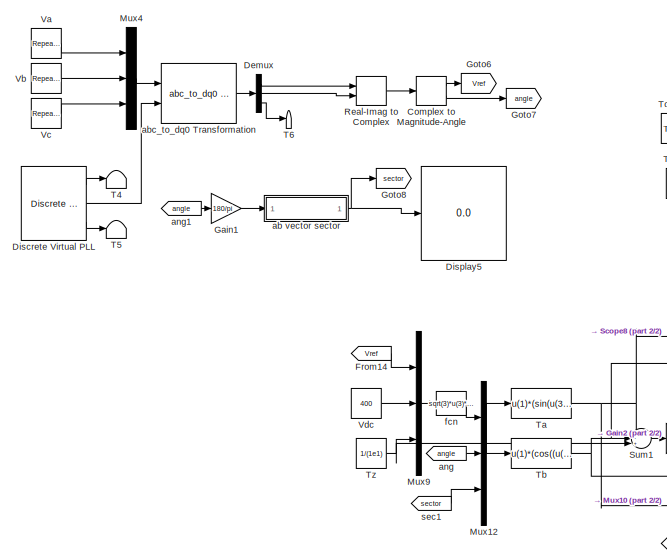
[diagram: root canvas - part 1/2, top left region]
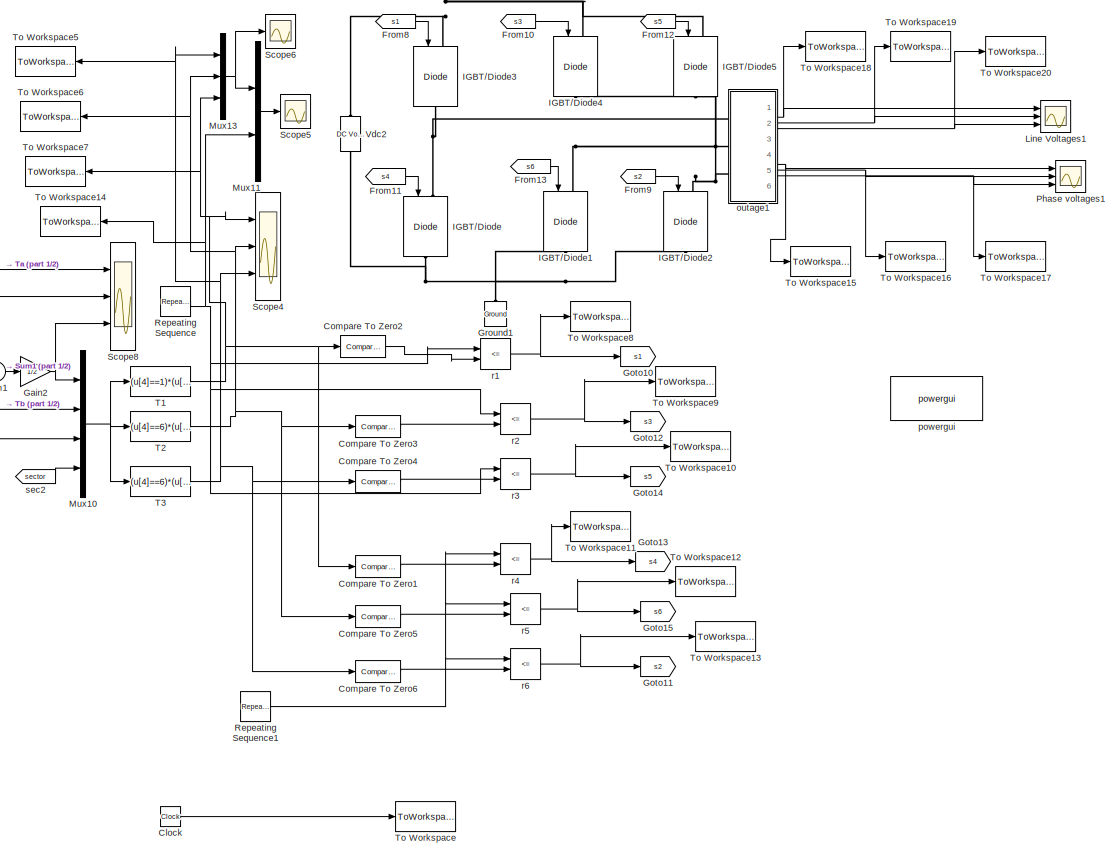
[diagram: root canvas - part 2/2, right side, full height]
MODEL slx_977e839b916f
KIND model
BLOCK [Clock] Clock
BLOCK [Reference] Compare To Zero1  REF=simulink/Logic and Bit
Operations/Compare
To Zero
  OutDataTypeStr = boolean
  Ports = [1, 1]
  SourceBlock = simulink/Logic and Bit\nOperations/Compare\nTo Zero
  SourceType = Compare To Zero
  ZeroCross = off
  relop = <
BLOCK [Reference] Compare To Zero2  REF=simulink/Logic and Bit
Operations/Compare
To Zero
  OutDataTypeStr = boolean
  Ports = [1, 1]
  SourceBlock = simulink/Logic and Bit\nOperations/Compare\nTo Zero
  SourceType = Compare To Zero
  ZeroCross = off
  relop = >
BLOCK [Reference] Compare To Zero3  REF=simulink/Logic and Bit
Operations/Compare
To Zero
  OutDataTypeStr = boolean
  Ports = [1, 1]
  SourceBlock = simulink/Logic and Bit\nOperations/Compare\nTo Zero
  SourceType = Compare To Zero
  ZeroCross = off
  relop = >
BLOCK [Reference] Compare To Zero4  REF=simulink/Logic and Bit
Operations/Compare
To Zero
  OutDataTypeStr = boolean
  Ports = [1, 1]
  SourceBlock = simulink/Logic and Bit\nOperations/Compare\nTo Zero
  SourceType = Compare To Zero
  ZeroCross = off
  relop = >
BLOCK [Reference] Compare To Zero5  REF=simulink/Logic and Bit
Operations/Compare
To Zero
  OutDataTypeStr = boolean
  Ports = [1, 1]
  SourceBlock = simulink/Logic and Bit\nOperations/Compare\nTo Zero
  SourceType = Compare To Zero
  ZeroCross = off
  relop = <
BLOCK [Reference] Compare To Zero6  REF=simulink/Logic and Bit
Operations/Compare
To Zero
  OutDataTypeStr = boolean
  Ports = [1, 1]
  SourceBlock = simulink/Logic and Bit\nOperations/Compare\nTo Zero
  SourceType = Compare To Zero
  ZeroCross = off
  relop = <
BLOCK [ComplexToMagnitudeAngle] Complex to Magnitude-Angle
  Ports = [1, 2]
BLOCK [Demux] Demux
  DisplayOption = bar
  Outputs = 3
  Ports = [1, 3]
BLOCK [Reference] Discrete Virtual PLL  REF=powerlib_extras/Discrete 
Control Blocks/Discrete
Virtual PLL
  Freq = 50
  Phase = 0
  Ports = [0, 3]
  SourceBlock = powerlib_extras/Discrete \nControl Blocks/Discrete\nVirtual PLL
  SourceType = Discrete Virtual PLL
  Ts = 50e-6
BLOCK [Display] Display5
  Decimation = 6
  Lockdown = off
  Ports = [1]
BLOCK [From] From10
  CloseFcn = tagdialog Close
  GotoTag = s3
BLOCK [From] From11
  CloseFcn = tagdialog Close
  GotoTag = s4
BLOCK [From] From12
  CloseFcn = tagdialog Close
  GotoTag = s5
BLOCK [From] From13
  CloseFcn = tagdialog Close
  GotoTag = s6
BLOCK [From] From14
  CloseFcn = tagdialog Close
  GotoTag = Vref
BLOCK [From] From8
  CloseFcn = tagdialog Close
  GotoTag = s1
BLOCK [From] From9
  CloseFcn = tagdialog Close
  GotoTag = s2
BLOCK [Gain] Gain1
  Gain = 180/pi
  OutDataTypeStr = Inherit: Inherit via internal rule
  ParamDataTypeStr = Inherit: Inherit via internal rule
  SaturateOnIntegerOverflow = off
BLOCK [Gain] Gain2
  Gain = 1/2
  OutDataTypeStr = Inherit: Inherit via internal rule
  ParamDataTypeStr = Inherit: Inherit via internal rule
  SaturateOnIntegerOverflow = off
BLOCK [Goto] Goto10
  GotoTag = s1
BLOCK [Goto] Goto11
  GotoTag = s2
BLOCK [Goto] Goto12
  GotoTag = s3
BLOCK [Goto] Goto13
  GotoTag = s4
BLOCK [Goto] Goto14
  GotoTag = s5
BLOCK [Goto] Goto15
  GotoTag = s6
BLOCK [Goto] Goto6
  GotoTag = Vref
BLOCK [Goto] Goto7
  GotoTag = angle
BLOCK [Goto] Goto8
  GotoTag = sector
BLOCK [Reference] Ground1  REF=powerlib/Elements/Ground
  LConnTagsString = a
  Ports = [0, 0, 0, 0, 0, 1]
  SourceBlock = powerlib/Elements/Ground
  SourceType = Ground
BLOCK [Reference] IGBT//Diode  REF=powerlib/Power
Electronics/IGBT//Diode
  Cs = inf
  Measurements = off
  Ports = [1, 0, 0, 0, 0, 1, 1]
  Ron = 1e-3
  Rs = 1e5
  SourceBlock = powerlib/Power\nElectronics/IGBT//Diode
  SourceType = IGBT/Diode
BLOCK [Reference] IGBT//Diode1  REF=powerlib/Power
Electronics/IGBT//Diode
  Cs = inf
  Measurements = off
  Ports = [1, 0, 0, 0, 0, 1, 1]
  Ron = 1e-3
  Rs = 1e5
  SourceBlock = powerlib/Power\nElectronics/IGBT//Diode
  SourceType = IGBT/Diode
BLOCK [Reference] IGBT//Diode2  REF=powerlib/Power
Electronics/IGBT//Diode
  Cs = inf
  Measurements = off
  Ports = [1, 0, 0, 0, 0, 1, 1]
  Ron = 1e-3
  Rs = 1e5
  SourceBlock = powerlib/Power\nElectronics/IGBT//Diode
  SourceType = IGBT/Diode
BLOCK [Reference] IGBT//Diode3  REF=powerlib/Power
Electronics/IGBT//Diode
  Cs = inf
  Measurements = off
  Ports = [1, 0, 0, 0, 0, 1, 1]
  Ron = 1e-3
  Rs = 1e5
  SourceBlock = powerlib/Power\nElectronics/IGBT//Diode
  SourceType = IGBT/Diode
BLOCK [Reference] IGBT//Diode4  REF=powerlib/Power
Electronics/IGBT//Diode
  Cs = inf
  Measurements = off
  Ports = [1, 0, 0, 0, 0, 1, 1]
  Ron = 1e-3
  Rs = 1e5
  SourceBlock = powerlib/Power\nElectronics/IGBT//Diode
  SourceType = IGBT/Diode
BLOCK [Reference] IGBT//Diode5  REF=powerlib/Power
Electronics/IGBT//Diode
  Cs = inf
  Measurements = off
  Ports = [1, 0, 0, 0, 0, 1, 1]
  Ron = 1e-3
  Rs = 1e5
  SourceBlock = powerlib/Power\nElectronics/IGBT//Diode
  SourceType = IGBT/Diode
BLOCK [Scope] Line Voltages1
  DataFormat = StructureWithTime
  Floating = off
  MaxDataPoints = 5000000
  NumInputPorts = 3
  Ports = [3]
  SampleInput = on
  SampleTime = 2e-6
  SaveName = Line_voltages1
  SaveToWorkspace = on
  ShowLegends = off
  YMax = 200~200~200
  YMin = -200~-200~-200
  ZoomMode = xonly
BLOCK [Mux] Mux10
  DisplayOption = bar
  Ports = [4, 1]
BLOCK [Mux] Mux11
  DisplayOption = bar
  Inputs = 2
  Ports = [2, 1]
BLOCK [Mux] Mux12
  DisplayOption = bar
  Inputs = 3
  Ports = [3, 1]
BLOCK [Mux] Mux13
  DisplayOption = bar
  Inputs = 3
  Ports = [3, 1]
BLOCK [Mux] Mux4
  DisplayOption = bar
  Inputs = 3
  Ports = [3, 1]
BLOCK [Mux] Mux9
  DisplayOption = bar
  Inputs = 3
  Ports = [3, 1]
BLOCK [Scope] Phase voltages1
  DataFormat = StructureWithTime
  Floating = off
  MaxDataPoints = 5000000
  NumInputPorts = 3
  Ports = [3]
  SampleInput = on
  SampleTime = 2e-6
  SaveName = Neutral_voltages1
  SaveToWorkspace = on
  ShowLegends = off
  YMax = 150~150~150
  YMin = -150~-150~-150
  ZoomMode = xonly
BLOCK [RealImagToComplex] Real-Imag to Complex
  Ports = [2, 1]
BLOCK [Reference] Repeating Sequence  REF=simulink/Sources/Repeating
Sequence
  Ports = [0, 1]
  SourceBlock = simulink/Sources/Repeating\nSequence
  SourceType = Repeating table
  rep_seq_t = [0 2e-5]
  rep_seq_y = [0.00001 1.5]
BLOCK [Reference] Repeating Sequence1  REF=simulink/Sources/Repeating
Sequence
  Ports = [0, 1]
  SourceBlock = simulink/Sources/Repeating\nSequence
  SourceType = Repeating table
  rep_seq_t = [0 2e-5]
  rep_seq_y = [0.00001 1.5]
BLOCK [Scope] Scope4
  DataFormat = StructureWithTime
  Floating = off
  NumInputPorts = 3
  Ports = [3]
  SampleTime = 0
  SaveName = ScopeData4
  ShowLegends = off
  YMax = 0.001~0.001~0.001
  YMin = -4.06576e-020~-4.06576e-020~-4.06576e-020
BLOCK [Scope] Scope5
  DataFormat = StructureWithTime
  Floating = off
  LegendLocations = 0.85175     0.85302     0.12461    0.094702
  NumInputPorts = 1
  Ports = [1]
  SampleTime = 0
  SaveName = ScopeData5
  ShowLegends = on
  YMax = 0.001
  YMin = 0
BLOCK [Scope] Scope6
  DataFormat = StructureWithTime
  Floating = off
  NumInputPorts = 1
  Ports = [1]
  SampleTime = 0
  SaveName = ScopeData6
  ShowLegends = off
  YMax = 0.001
  YMin = -4.06576e-020
  ZoomMode = xonly
BLOCK [Scope] Scope8
  DataFormat = StructureWithTime
  Floating = off
  NumInputPorts = 3
  Ports = [3]
  SampleTime = 0
  SaveName = ScopeData7
  ShowLegends = off
  YMax = 0.0009~0.0009~7e-005
  YMin = -5e-005~6.77626e-020~0
BLOCK [Sum] Sum1
  IconShape = round
  InputSameDT = off
  Inputs = --+
  OutDataTypeStr = Inherit: Inherit via internal rule
  Ports = [3, 1]
  SaturateOnIntegerOverflow = off
BLOCK [Fcn] T1
  Expr = (u[4]==1)*(u[1]+u[2]+u[3])+(u[4]==6)*(u[1]+u[2]+u[3])+(u[4]==2)*(u[1]+u[3])+(u[4]==3)*(u[1])+(u[4]==4)*(u[1])+(u[4]==5)*(u[1]+u[2])
BLOCK [Fcn] T2
  Expr = (u[4]==6)*(u[1])+(u[4]==1)*(u[1]+u[2])+(u[4]==2)*(u[1]+u[2]+u[3])+(u[4]==3)*(u[1]+u[2]+u[3])+(u[4]==4)*(u[1]+u[3])+(u[4]==5)*(u[1])
BLOCK [Fcn] T3
  Expr = (u[4]==6)*(u[1]+u[3])+(u[4]==1)*(u[1])+(u[4]==2)*(u[1])+(u[4]==3)*(u[1]+u[2])+(u[4]==4)*(u[1]+u[2]+u[3])+(u[4]==5)*(u[1]+u[2]+u[3])
BLOCK [Terminator] T4
BLOCK [Terminator] T5
BLOCK [Terminator] T6
BLOCK [Fcn] Ta
  Expr = u(1)*(sin(u(3)*pi/3)*cos(u(2))-cos(u(3)*pi/3)*sin(u(2)))
BLOCK [Fcn] Tb
  Expr = u(1)*(cos((u(3)-1)*(pi/3))*sin(u(2))-sin((u(3)-1)*(pi/3))*cos(u(2)))
BLOCK [ToWorkspace] To Workspace
  FixptAsFi = on
  MaxDataPoints = inf
  Ports = [1]
  SampleTime = -1
  SaveFormat = Structure With Time
  VariableName = Time
BLOCK [ToWorkspace] To Workspace10
  FixptAsFi = on
  MaxDataPoints = inf
  Ports = [1]
  SampleTime = -1
  SaveFormat = Structure With Time
  VariableName = s5
BLOCK [ToWorkspace] To Workspace11
  FixptAsFi = on
  MaxDataPoints = inf
  Ports = [1]
  SampleTime = -1
  SaveFormat = Structure With Time
  VariableName = s4
BLOCK [ToWorkspace] To Workspace12
  FixptAsFi = on
  MaxDataPoints = inf
  Ports = [1]
  SampleTime = -1
  SaveFormat = Structure With Time
  VariableName = s6
BLOCK [ToWorkspace] To Workspace13
  FixptAsFi = on
  MaxDataPoints = inf
  Ports = [1]
  SampleTime = -1
  SaveFormat = Structure With Time
  VariableName = s2
BLOCK [ToWorkspace] To Workspace14
  FixptAsFi = on
  MaxDataPoints = inf
  Ports = [1]
  SampleTime = -1
  SaveFormat = Structure With Time
  VariableName = saw
BLOCK [ToWorkspace] To Workspace15
  FixptAsFi = on
  MaxDataPoints = inf
  Ports = [1]
  SampleTime = -1
  SaveFormat = Structure With Time
  VariableName = vna
BLOCK [ToWorkspace] To Workspace16
  FixptAsFi = on
  MaxDataPoints = inf
  Ports = [1]
  SampleTime = -1
  SaveFormat = Structure With Time
  VariableName = vnb
BLOCK [ToWorkspace] To Workspace17
  FixptAsFi = on
  MaxDataPoints = inf
  Ports = [1]
  SampleTime = -1
  SaveFormat = Structure With Time
  VariableName = vnc
BLOCK [ToWorkspace] To Workspace18
  FixptAsFi = on
  MaxDataPoints = inf
  Ports = [1]
  SampleTime = -1
  SaveFormat = Structure With Time
  VariableName = vac
BLOCK [ToWorkspace] To Workspace19
  FixptAsFi = on
  MaxDataPoints = inf
  Ports = [1]
  SampleTime = -1
  SaveFormat = Structure With Time
  VariableName = vab
BLOCK [ToWorkspace] To Workspace20
  FixptAsFi = on
  MaxDataPoints = inf
  Ports = [1]
  SampleTime = -1
  SaveFormat = Structure With Time
  VariableName = vbc
BLOCK [ToWorkspace] To Workspace5
  FixptAsFi = on
  MaxDataPoints = inf
  Ports = [1]
  SampleTime = -1
  SaveFormat = Structure With Time
  VariableName = va
BLOCK [ToWorkspace] To Workspace6
  FixptAsFi = on
  MaxDataPoints = inf
  Ports = [1]
  SampleTime = -1
  SaveFormat = Structure With Time
  VariableName = vb
BLOCK [ToWorkspace] To Workspace7
  FixptAsFi = on
  MaxDataPoints = inf
  Ports = [1]
  SampleTime = -1
  SaveFormat = Structure With Time
  VariableName = vc
BLOCK [ToWorkspace] To Workspace8
  FixptAsFi = on
  MaxDataPoints = inf
  Ports = [1]
  SampleTime = -1
  SaveFormat = Structure With Time
  VariableName = s1
BLOCK [ToWorkspace] To Workspace9
  FixptAsFi = on
  MaxDataPoints = inf
  Ports = [1]
  SampleTime = -1
  SaveFormat = Structure With Time
  VariableName = s3
BLOCK [Constant] Tz
  Value = 1/(1e1)
BLOCK [Reference] Va   REF=simulink/Sources/Repeating
Sequence
Interpolated
  LockScale = off
  LookUpMeth = Interpolation-Use End Values
  OutDataType = fixdt(0,8)
  OutDataTypeStr = double
  OutMax = []
  OutMin = []
  OutScaling = 2^-10
  OutValues = [250 250 -250 -250 250 250 -250 -250].'
  OutputDataTypeScalingMode = double
  Ports = [0, 1]
  SourceBlock = simulink/Sources/Repeating\nSequence\nInterpolated
  SourceType = Repeating Sequence Interpolated
  TimeValues = [0 0.2 0.3 0.5 0.6 0.8 0.9 1.1].'
  tsamp = 0.01
BLOCK [Reference] Vb  REF=simulink/Sources/Repeating
Sequence
Interpolated
  LockScale = off
  LookUpMeth = Interpolation-Use End Values
  OutDataType = fixdt(0,8)
  OutDataTypeStr = double
  OutMax = []
  OutMin = []
  OutScaling = 2^-10
  OutValues = [-250 -250 250 250 -250 -250 250 250].'
  OutputDataTypeScalingMode = double
  Ports = [0, 1]
  SourceBlock = simulink/Sources/Repeating\nSequence\nInterpolated
  SourceType = Repeating Sequence Interpolated
  TimeValues = [0 0.1 0.2 0.4 0.5 0.7 0.8 1 ].'
  tsamp = 0.01
BLOCK [Reference] Vc  REF=simulink/Sources/Repeating
Sequence
Interpolated
  LockScale = off
  LookUpMeth = Interpolation-Use End Values
  OutDataType = fixdt(0,8)
  OutDataTypeStr = double
  OutMax = []
  OutMin = []
  OutScaling = 2^-10
  OutValues = [250 -250 -250 250 250 -250 -250 250].'
  OutputDataTypeScalingMode = double
  Ports = [0, 1]
  SourceBlock = simulink/Sources/Repeating\nSequence\nInterpolated
  SourceType = Repeating Sequence Interpolated
  TimeValues = [0 0.1 0.3 0.4 0.6 0.7 0.9 1].'
  tsamp = 0.01
BLOCK [Constant] Vdc
  Value = 400
BLOCK [Reference] Vdc2  REF=powerlib/Electrical
Sources/DC Voltage Source
  Amplitude = 400
  Measurements = None
  Ports = [0, 0, 0, 0, 0, 1, 1]
  SourceBlock = powerlib/Electrical\nSources/DC Voltage Source
  SourceType = DC Voltage Source
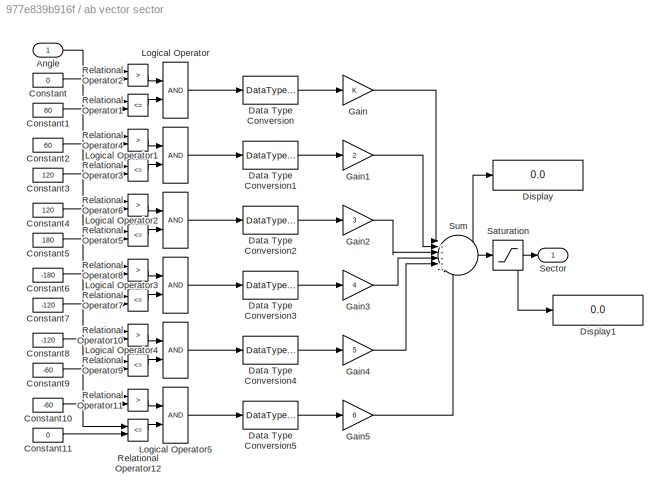
BLOCK [SubSystem] ab vector sector
  AncestorBlock = AC2DriveInternalModels/SVM generator/ab vector sector
  FunctionWithSeparateData = off
  MaskHideContents = off
  MinAlgLoopOccurrences = off
  Opaque = off
  Ports = [1, 1]
  PropExecContextOutsideSubsystem = off
  RTWSystemCode = Auto
  RequestExecContextInheritance = off
BLOCK [Inport] ab vector sector/Angle
  IconDisplay = Port number
BLOCK [Constant] ab vector sector/Constant
  Value = 0
BLOCK [Constant] ab vector sector/Constant1
  Value = 60
BLOCK [Constant] ab vector sector/Constant10
  Value = -60
BLOCK [Constant] ab vector sector/Constant11
  Value = 0
BLOCK [Constant] ab vector sector/Constant2
  Value = 60
BLOCK [Constant] ab vector sector/Constant3
  Value = 120
BLOCK [Constant] ab vector sector/Constant4
  Value = 120
BLOCK [Constant] ab vector sector/Constant5
  Value = 180
BLOCK [Constant] ab vector sector/Constant6
  Value = -180
BLOCK [Constant] ab vector sector/Constant7
  Value = -120
BLOCK [Constant] ab vector sector/Constant8
  Value = -120
BLOCK [Constant] ab vector sector/Constant9
  Value = -60
BLOCK [DataTypeConversion] ab vector sector/Data Type Conversion
BLOCK [DataTypeConversion] ab vector sector/Data Type Conversion1
BLOCK [DataTypeConversion] ab vector sector/Data Type Conversion2
BLOCK [DataTypeConversion] ab vector sector/Data Type Conversion3
BLOCK [DataTypeConversion] ab vector sector/Data Type Conversion4
BLOCK [DataTypeConversion] ab vector sector/Data Type Conversion5
BLOCK [Display] ab vector sector/Display
  Decimation = 1
  Lockdown = off
  Ports = [1]
BLOCK [Display] ab vector sector/Display1
  Decimation = 1
  Lockdown = off
  Ports = [1]
BLOCK [Gain] ab vector sector/Gain
BLOCK [Gain] ab vector sector/Gain1
  Gain = 2
BLOCK [Gain] ab vector sector/Gain2
  Gain = 3
BLOCK [Gain] ab vector sector/Gain3
  Gain = 4
BLOCK [Gain] ab vector sector/Gain4
  Gain = 5
BLOCK [Gain] ab vector sector/Gain5
  Gain = 6
BLOCK [Logic] ab vector sector/Logical Operator
  Ports = [2, 1]
BLOCK [Logic] ab vector sector/Logical Operator1
  Ports = [2, 1]
BLOCK [Logic] ab vector sector/Logical Operator2
  Ports = [2, 1]
BLOCK [Logic] ab vector sector/Logical Operator3
  Ports = [2, 1]
BLOCK [Logic] ab vector sector/Logical Operator4
  Ports = [2, 1]
BLOCK [Logic] ab vector sector/Logical Operator5
  Ports = [2, 1]
BLOCK [RelationalOperator] ab vector sector/Relational Operator1
  Operator = <=
  Ports = [2, 1]
BLOCK [RelationalOperator] ab vector sector/Relational Operator10
  Operator = >
  Ports = [2, 1]
BLOCK [RelationalOperator] ab vector sector/Relational Operator11
  Operator = >
  Ports = [2, 1]
BLOCK [RelationalOperator] ab vector sector/Relational Operator12
  Operator = <=
  Ports = [2, 1]
BLOCK [RelationalOperator] ab vector sector/Relational Operator2
  Operator = >
  Ports = [2, 1]
BLOCK [RelationalOperator] ab vector sector/Relational Operator3
  Operator = <=
  Ports = [2, 1]
BLOCK [RelationalOperator] ab vector sector/Relational Operator4
  Operator = >
  Ports = [2, 1]
BLOCK [RelationalOperator] ab vector sector/Relational Operator5
  Operator = <=
  Ports = [2, 1]
BLOCK [RelationalOperator] ab vector sector/Relational Operator6
  Operator = >
  Ports = [2, 1]
BLOCK [RelationalOperator] ab vector sector/Relational Operator7
  Operator = <=
  Ports = [2, 1]
BLOCK [RelationalOperator] ab vector sector/Relational Operator8
  Operator = >
  Ports = [2, 1]
BLOCK [RelationalOperator] ab vector sector/Relational Operator9
  Operator = <=
  Ports = [2, 1]
BLOCK [Saturate] ab vector sector/Saturation
  InputPortMap = u0
  LowerLimit = 1
  Ports = [1, 1]
  UpperLimit = 6
BLOCK [Outport] ab vector sector/Sector
  IconDisplay = Port number
BLOCK [Sum] ab vector sector/Sum
  IconShape = round
  Inputs = |++++++
  Ports = [6, 1]
BLOCK [Reference] abc_to_dq0 Transformation  REF=powerlib_extras/Measurements/abc_to_dq0
Transformation
  Ports = [2, 1]
  SourceBlock = powerlib_extras/Measurements/abc_to_dq0\nTransformation
  SourceType = abc to dq0 Transformation
BLOCK [From] ang
  CloseFcn = tagdialog Close
  GotoTag = angle
BLOCK [From] ang1
  CloseFcn = tagdialog Close
  GotoTag = angle
BLOCK [Fcn] fcn
  Expr = sqrt(3)*u(3)*u(1)/u(2)
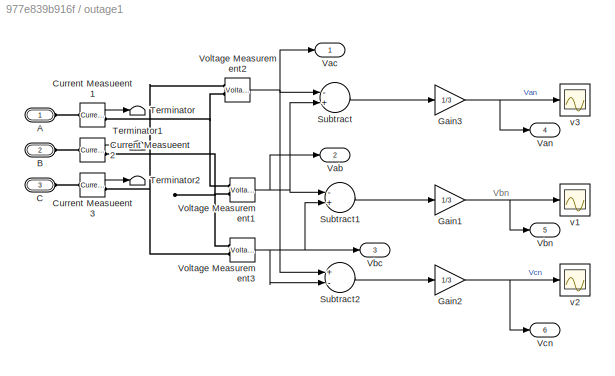
BLOCK [SubSystem] outage1
  FunctionWithSeparateData = off
  MaskHideContents = off
  MinAlgLoopOccurrences = off
  Opaque = off
  Ports = [0, 6, 0, 0, 0, 3]
  PropExecContextOutsideSubsystem = off
  RTWSystemCode = Auto
  RequestExecContextInheritance = off
BLOCK [PMIOPort] outage1/A
  Port = 1
  Side = Left
BLOCK [PMIOPort] outage1/B
  Port = 2
  Side = Left
BLOCK [PMIOPort] outage1/C
  Port = 3
  Side = Left
BLOCK [Reference] outage1/Current Measueent1  REF=powerlib/Measurements/Current Measurement
  OutputType = Complex
  PSBequivalent = 0
  PhasorSimulation = off
  Ports = [0, 1, 0, 0, 0, 1, 1]
  SourceBlock = powerlib/Measurements/Current Measurement
  SourceType = Current Measurement
BLOCK [Reference] outage1/Current Measueent2  REF=powerlib/Measurements/Current Measurement
  OutputType = Complex
  PSBequivalent = 0
  PhasorSimulation = off
  Ports = [0, 1, 0, 0, 0, 1, 1]
  SourceBlock = powerlib/Measurements/Current Measurement
  SourceType = Current Measurement
BLOCK [Reference] outage1/Current Measueent3  REF=powerlib/Measurements/Current Measurement
  OutputType = Complex
  PSBequivalent = 0
  PhasorSimulation = off
  Ports = [0, 1, 0, 0, 0, 1, 1]
  SourceBlock = powerlib/Measurements/Current Measurement
  SourceType = Current Measurement
BLOCK [Gain] outage1/Gain1
  Gain = 1/3
  OutDataTypeStr = Inherit: Inherit via internal rule
  ParamDataTypeStr = Inherit: Inherit via internal rule
  SaturateOnIntegerOverflow = off
BLOCK [Gain] outage1/Gain2
  Gain = 1/3
  OutDataTypeStr = Inherit: Inherit via internal rule
  ParamDataTypeStr = Inherit: Inherit via internal rule
  SaturateOnIntegerOverflow = off
BLOCK [Gain] outage1/Gain3
  Gain = 1/3
  OutDataTypeStr = Inherit: Inherit via internal rule
  ParamDataTypeStr = Inherit: Inherit via internal rule
  SaturateOnIntegerOverflow = off
BLOCK [Sum] outage1/Subtract
  InputSameDT = off
  Inputs = -+
  OutDataTypeStr = Inherit: Inherit via internal rule
  Ports = [2, 1]
  SaturateOnIntegerOverflow = off
BLOCK [Sum] outage1/Subtract1
  InputSameDT = off
  Inputs = -+
  OutDataTypeStr = Inherit: Inherit via internal rule
  Ports = [2, 1]
  SaturateOnIntegerOverflow = off
BLOCK [Sum] outage1/Subtract2
  InputSameDT = off
  Inputs = +-
  OutDataTypeStr = Inherit: Inherit via internal rule
  Ports = [2, 1]
  SaturateOnIntegerOverflow = off
BLOCK [Terminator] outage1/Terminator
BLOCK [Terminator] outage1/Terminator1
BLOCK [Terminator] outage1/Terminator2
BLOCK [Outport] outage1/Vab
  IconDisplay = Port number
  Port = 2
BLOCK [Outport] outage1/Vac
  IconDisplay = Port number
BLOCK [Outport] outage1/Van
  IconDisplay = Port number
  Port = 4
BLOCK [Outport] outage1/Vbc
  IconDisplay = Port number
  Port = 3
BLOCK [Outport] outage1/Vbn
  IconDisplay = Port number
  Port = 5
BLOCK [Outport] outage1/Vcn
  IconDisplay = Port number
  Port = 6
BLOCK [Reference] outage1/Voltage Measurement1  REF=powerlib/Measurements/Voltage Measurement
  OutputType = Complex
  PSBequivalent = 0
  PhasorSimulation = off
  Ports = [0, 1, 0, 0, 0, 2]
  SourceBlock = powerlib/Measurements/Voltage Measurement
  SourceType = Voltage Measurement
BLOCK [Reference] outage1/Voltage Measurement2  REF=powerlib/Measurements/Voltage Measurement
  OutputType = Complex
  PSBequivalent = 0
  PhasorSimulation = off
  Ports = [0, 1, 0, 0, 0, 2]
  SourceBlock = powerlib/Measurements/Voltage Measurement
  SourceType = Voltage Measurement
BLOCK [Reference] outage1/Voltage Measurement3  REF=powerlib/Measurements/Voltage Measurement
  OutputType = Complex
  PSBequivalent = 0
  PhasorSimulation = off
  Ports = [0, 1, 0, 0, 0, 2]
  SourceBlock = powerlib/Measurements/Voltage Measurement
  SourceType = Voltage Measurement
BLOCK [Scope] outage1/v1
  DataFormat = StructureWithTime
  Floating = off
  MaxDataPoints = 5000000
  NumInputPorts = 1
  Ports = [1]
  SampleTime = 0
  SaveName = ScopeData25
  ShowLegends = off
  ZoomMode = xonly
BLOCK [Scope] outage1/v2
  DataFormat = StructureWithTime
  Floating = off
  MaxDataPoints = 5000000
  NumInputPorts = 1
  Ports = [1]
  SampleTime = 0
  SaveName = ScopeData26
  ShowLegends = off
  ZoomMode = xonly
BLOCK [Scope] outage1/v3
  DataFormat = StructureWithTime
  Floating = off
  MaxDataPoints = 5000000
  NumInputPorts = 1
  Ports = [1]
  SampleTime = 0
  SaveName = ScopeData27
  ShowLegends = off
  YMax = 275
  YMin = -25
  ZoomMode = xonly
BLOCK [Reference] powergui  REF=powerlib/powergui
  DisableRonSwitches = off
  DisableSnubberDevices = off
  DisableVfSwitches = off
  DisplayEquations = off
  DisplayStyle = 3
  EnableUseOfTLC = off
  ErrMax = 1e-4
  Frange = [0:2:500]
  FreqAxis = off
  FunctionMessages = off
  HookPort = off
  Interpol = off
  Iterations = 50
  MaxFrequency = 200
  Pbase = 100e6
  Ports = []
  Priority = 1
  ResistiveCurrentMeasurement = off
  RestoreLinks = warning
  RmsSteady = 1
  SPID = off
  SampleTime = 1e-6
  ShowGrid = off
  SolverType = Tustin
  SourceBlock = powerlib/powergui
  SourceType = PSB option menu block
  StartTime = 0
  SwTol = 0
  Ts = 0
  UnitsV = kV
  UnitsW = MW
  UserDataPersistent = on
  Xlog = on
  Ylog = off
  ZoomFFT = off
  cycles = 1
  display = off
  echomessages = off
  frequency = 60
  frequencyindice = 0
  frequencyindicesteady = 1
  fundamental = 50
  methode = off
  save = off
  structure = Neutral_voltages
  variable = ZData
  x0status = blocks
BLOCK [RelationalOperator] r1
  InputSameDT = off
  Operator = <=
  OutDataTypeStr = boolean
  Ports = [2, 1]
BLOCK [RelationalOperator] r2
  InputSameDT = off
  Operator = <=
  OutDataTypeStr = boolean
  Ports = [2, 1]
BLOCK [RelationalOperator] r3
  InputSameDT = off
  Operator = <=
  OutDataTypeStr = boolean
  Ports = [2, 1]
BLOCK [RelationalOperator] r4
  InputSameDT = off
  Operator = <=
  OutDataTypeStr = boolean
  Ports = [2, 1]
BLOCK [RelationalOperator] r5
  InputSameDT = off
  Operator = <=
  OutDataTypeStr = boolean
  Ports = [2, 1]
BLOCK [RelationalOperator] r6
  InputSameDT = off
  Operator = <=
  OutDataTypeStr = boolean
  Ports = [2, 1]
BLOCK [From] sec1
  CloseFcn = tagdialog Close
  GotoTag = sector
BLOCK [From] sec2
  CloseFcn = tagdialog Close
  GotoTag = sector
ANNOTATION outage1: Vbn
LINE Clock:1 -> To Workspace:1
LINE Compare To Zero1:1 -> r4:2
LINE Compare To Zero2:1 -> r1:2
LINE Compare To Zero3:1 -> r2:2
LINE Compare To Zero4:1 -> r3:2
LINE Compare To Zero5:1 -> r5:2
LINE Compare To Zero6:1 -> r6:2
LINE Complex to Magnitude-Angle:1 -> Goto6:1
LINE Complex to Magnitude-Angle:2 -> Goto7:1
LINE Demux:1 -> Real-Imag to Complex:1
LINE Demux:2 -> Real-Imag to Complex:2
LINE Demux:3 -> T6:1
LINE Discrete Virtual PLL:1 -> T4:1
LINE Discrete Virtual PLL:2 -> abc_to_dq0 Transformation:2
LINE Discrete Virtual PLL:3 -> T5:1
LINE From10:1 -> IGBT//Diode4:1
LINE From11:1 -> IGBT//Diode:1
LINE From12:1 -> IGBT//Diode5:1
LINE From13:1 -> IGBT//Diode1:1
LINE From14:1 -> Mux9:1
LINE From8:1 -> IGBT//Diode3:1
LINE From9:1 -> IGBT//Diode2:1
LINE Gain1:1 -> ab vector sector:1
NET Gain2:1 -> Mux10:1, Scope8:3
NET Mux10:1 -> T1:1, T2:1, T3:1
LINE Mux11:1 -> Scope5:1
NET Mux12:1 -> Ta:1, Tb:1
NET Mux13:1 -> Mux11:1, Scope6:1
LINE Mux4:1 -> abc_to_dq0 Transformation:1
LINE Mux9:1 -> fcn:1
LINE Real-Imag to Complex:1 -> Complex to Magnitude-Angle:1
NET Repeating Sequence1:1 -> r4:1, r5:1, r6:1
NET Repeating Sequence:1 -> Mux11:2, To Workspace14:1, r1:1, r2:1, r3:1
LINE Sum1:1 -> Gain2:1
NET T1:1 -> Compare To Zero1:1, Compare To Zero2:1, Mux13:3, Scope4:1, To Workspace7:1
NET T2:1 -> Compare To Zero3:1, Compare To Zero5:1, Mux13:2, Scope4:2, To Workspace6:1
NET T3:1 -> Compare To Zero4:1, Compare To Zero6:1, Mux13:1, Scope4:3, To Workspace5:1
NET Ta:1 -> Mux10:3, Scope8:1, Sum1:1
NET Tb:1 -> Mux10:2, Scope8:2, Sum1:2
NET Tz:1 -> Mux9:3, Sum1:3
LINE Va :1 -> Mux4:1
LINE Vb:1 -> Mux4:2
LINE Vc:1 -> Mux4:3
LINE Vdc:1 -> Mux9:2
NET ab vector sector:1 -> Display5:1, Goto8:1
LINE abc_to_dq0 Transformation:1 -> Demux:1
LINE ang1:1 -> Gain1:1
LINE ang:1 -> Mux12:2
LINE fcn:1 -> Mux12:1
LINE outage1/Current Measueent1:1 -> outage1/Terminator:1
LINE outage1/Current Measueent2:1 -> outage1/Terminator1:1
LINE outage1/Current Measueent3:1 -> outage1/Terminator2:1
NET outage1/Gain1:1 -> outage1/Vbn:1, outage1/v1:1
NET outage1/Gain2:1 -> outage1/Vcn:1, outage1/v2:1
NET outage1/Gain3:1 -> outage1/Van:1, outage1/v3:1
LINE outage1/Subtract1:1 -> outage1/Gain1:1
LINE outage1/Subtract2:1 -> outage1/Gain2:1
LINE outage1/Subtract:1 -> outage1/Gain3:1
NET outage1/Voltage Measurement1:1 -> outage1/Subtract1:1, outage1/Subtract:2, outage1/Vab:1
NET outage1/Voltage Measurement2:1 -> outage1/Subtract2:1, outage1/Subtract:1, outage1/Vac:1
NET outage1/Voltage Measurement3:1 -> outage1/Subtract1:2, outage1/Subtract2:2, outage1/Vbc:1
NET outage1:1 -> Line Voltages1:1, To Workspace18:1
NET outage1:2 -> Line Voltages1:2, To Workspace19:1
NET outage1:3 -> Line Voltages1:3, To Workspace20:1
NET outage1:4 -> Phase voltages1:1, To Workspace15:1
NET outage1:5 -> Phase voltages1:2, To Workspace16:1
NET outage1:6 -> Phase voltages1:3, To Workspace17:1
NET r1:1 -> Goto10:1, To Workspace8:1
NET r2:1 -> Goto12:1, To Workspace9:1
NET r3:1 -> Goto14:1, To Workspace10:1
NET r4:1 -> Goto13:1, To Workspace11:1
NET r5:1 -> Goto15:1, To Workspace12:1
NET r6:1 -> Goto11:1, To Workspace13:1
LINE sec1:1 -> Mux12:3
LINE sec2:1 -> Mux10:4
PNET net1: Ground1:LConn1 -- IGBT//Diode1:RConn1 -- IGBT//Diode2:RConn1 -- IGBT//Diode:RConn1 -- Vdc2:LConn1
PNET net2: IGBT//Diode1:LConn1 -- IGBT//Diode4:RConn1 -- outage1:LConn2
PNET net3: IGBT//Diode2:LConn1 -- IGBT//Diode5:RConn1 -- outage1:LConn3
PNET net4: IGBT//Diode3:LConn1 -- IGBT//Diode4:LConn1 -- IGBT//Diode5:LConn1 -- Vdc2:RConn1
PNET net5: IGBT//Diode3:RConn1 -- IGBT//Diode:LConn1 -- outage1:LConn1
PLINE outage1/A:RConn1 -- outage1/Current Measueent1:LConn1
PLINE outage1/B:RConn1 -- outage1/Current Measueent2:LConn1
PLINE outage1/C:RConn1 -- outage1/Current Measueent3:LConn1
PNET net6: outage1/Current Measueent1:RConn1 -- outage1/Voltage Measurement1:LConn1 -- outage1/Voltage Measurement2:LConn2
PNET net7: outage1/Current Measueent2:RConn1 -- outage1/Voltage Measurement1:LConn2 -- outage1/Voltage Measurement3:LConn1
PNET net8: outage1/Current Measueent3:RConn1 -- outage1/Voltage Measurement2:LConn1 -- outage1/Voltage Measurement3:LConn2
note: NET lines group one-source signal fan-out (src -> all destinations, sorted); 1:1 wires keep LINE; PNET lines group multi-terminal physical nets as a canonical sorted terminal list (undirected conserving connections); 2-terminal nets keep the pairwise PLINE form
